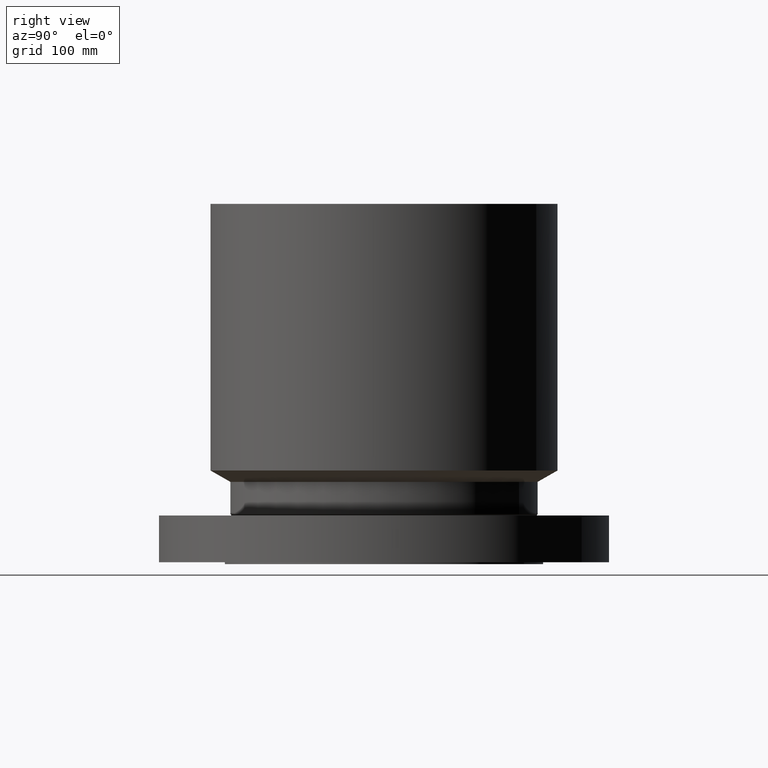
[diagram: clean part render]
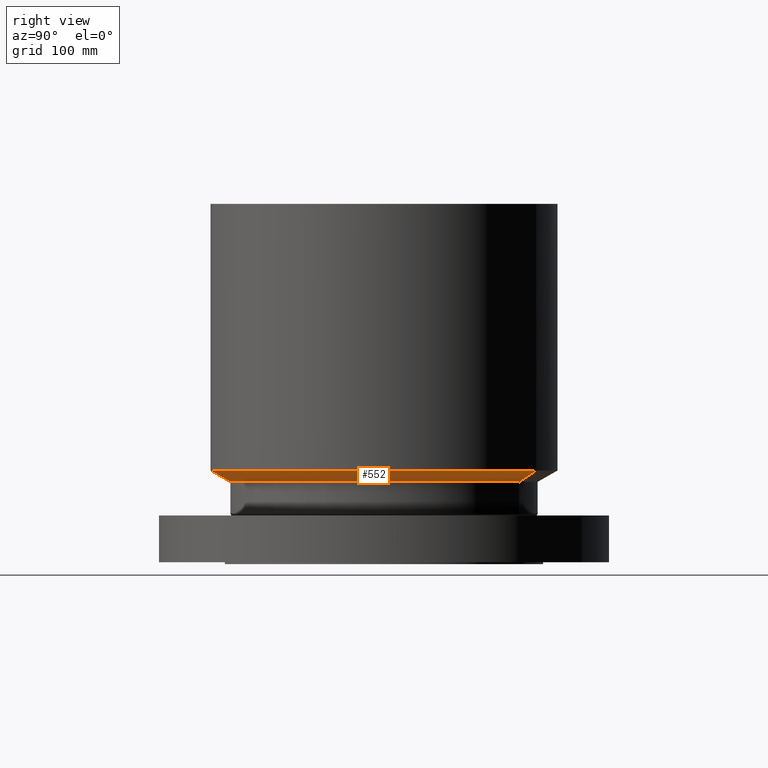
[diagram: same view with one face highlighted and labeled with its STEP entity id]
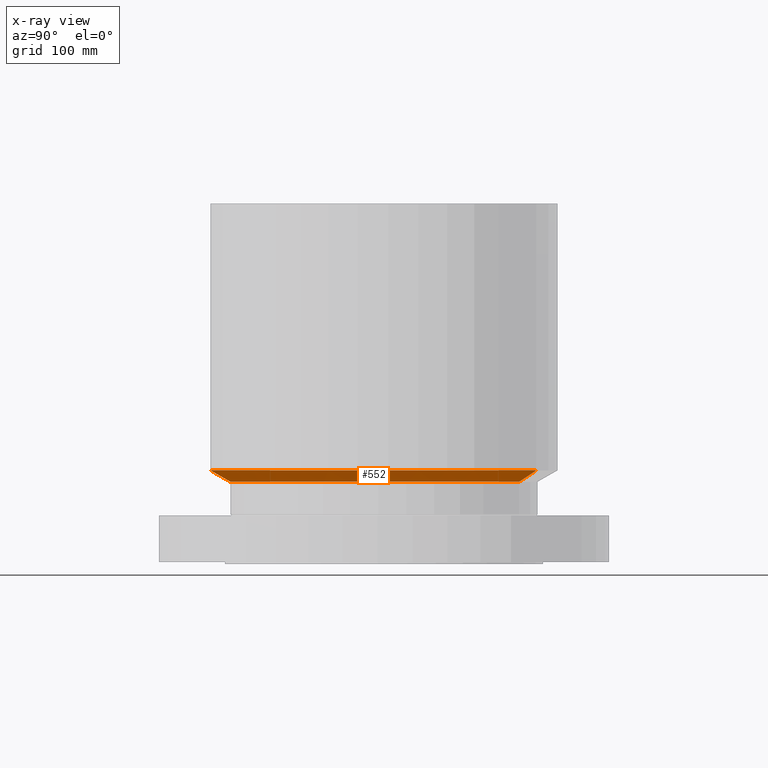
[diagram: x-ray of the same camera — body ghosted, the highlighted face saturated]
A machine part, right view. The second image highlights one B-rep face of the part: STEP entity #552.
The next image is the same camera in x-ray: the body ghosted, the highlighted face saturated — about 0% of this face is hidden behind the body in this view.
In plain terms, the highlighted conical surface has half-angle 60 deg.
Its self-contained STEP definition (entity closure, byte-faithful):
#493=AXIS2_PLACEMENT_3D('Circle Axis2P3D',#491,#492,$) ;
#525=AXIS2_PLACEMENT_3D('Cone Axis2P3D',#522,#523,#524) ;
#536=AXIS2_PLACEMENT_3D('Circle Axis2P3D',#534,#535,$) ;
#488=CARTESIAN_POINT('Vertex',(2.45705588536,4.49761062971,2.67750000001)) ;
#491=CARTESIAN_POINT('Axis2P3D Location',(0.,0.,2.67750000001)) ;
#495=CARTESIAN_POINT('Vertex',(-2.45705588536,-4.49761062971,2.67750000001)) ;
#522=CARTESIAN_POINT('Axis2P3D Location',(0.,0.,2.67750000001)) ;
#527=CARTESIAN_POINT('Line Origine',(2.61406774925,4.78501891873,2.86658221317)) ;
#531=CARTESIAN_POINT('Vertex',(2.77107961314,5.07242720775,3.05566442633)) ;
#534=CARTESIAN_POINT('Axis2P3D Location',(0.,0.,3.05566442633)) ;
#538=CARTESIAN_POINT('Vertex',(-2.77107961314,-5.07242720775,3.05566442633)) ;
#541=CARTESIAN_POINT('Line Origine',(-2.61406774925,-4.78501891873,2.86658221317)) ;
#492=DIRECTION('Axis2P3D Direction',(0.,0.,-0.0393700787402)) ;
#523=DIRECTION('Axis2P3D Direction',(-0.,-0.,0.0393700787402)) ;
#524=DIRECTION('Axis2P3D XDirection',(0.0188750212049,0.0345504945626,0.)) ;
#528=DIRECTION('Vector Direction',(0.0163462478604,0.0299216060045,0.0196850393701)) ;
#535=DIRECTION('Axis2P3D Direction',(-0.,0.,0.0393700787402)) ;
#542=DIRECTION('Vector Direction',(-0.0163462478604,-0.0299216060045,0.0196850393701)) ;
#529=VECTOR('Line Direction',#528,0.0393700787402) ;
#543=VECTOR('Line Direction',#542,0.0393700787402) ;
#547=ORIENTED_EDGE('',*,*,#497,.F.) ;
#548=ORIENTED_EDGE('',*,*,#533,.T.) ;
#549=ORIENTED_EDGE('',*,*,#540,.T.) ;
#550=ORIENTED_EDGE('',*,*,#545,.F.) ;
#552=ADVANCED_FACE('PartBody',(#551),#526,.T.) ;
#494=CIRCLE('generated circle',#493,5.12500000002) ;
#537=CIRCLE('generated circle',#536,5.78000000002) ;
#526=CONICAL_SURFACE('Cone',#525,5.12500000002,1.0471975512) ;
#497=EDGE_CURVE('',#489,#496,#494,.T.) ;
#533=EDGE_CURVE('',#489,#532,#530,.T.) ;
#540=EDGE_CURVE('',#532,#539,#537,.F.) ;
#545=EDGE_CURVE('',#496,#539,#544,.T.) ;
#546=EDGE_LOOP('',(#547,#548,#549,#550)) ;
#551=FACE_OUTER_BOUND('',#546,.T.) ;
#530=LINE('Line',#527,#529) ;
#544=LINE('Line',#541,#543) ;
#489=VERTEX_POINT('',#488) ;
#496=VERTEX_POINT('',#495) ;
#532=VERTEX_POINT('',#531) ;
#539=VERTEX_POINT('',#538) ;